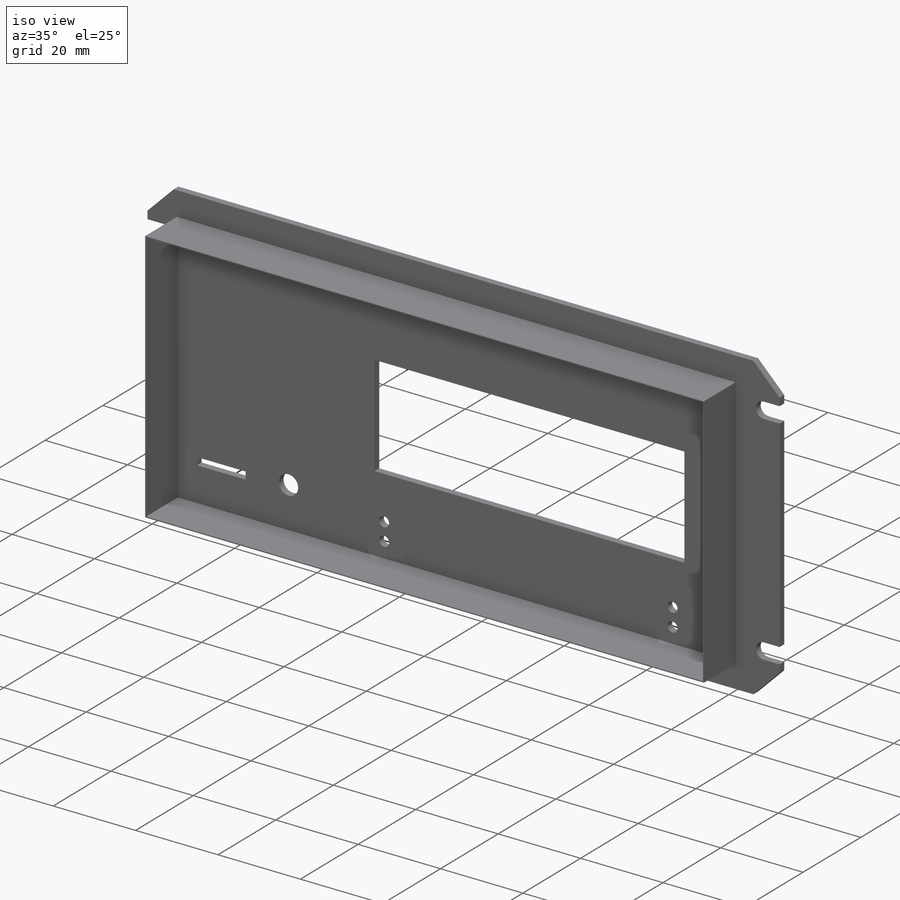
[diagram: iso view]
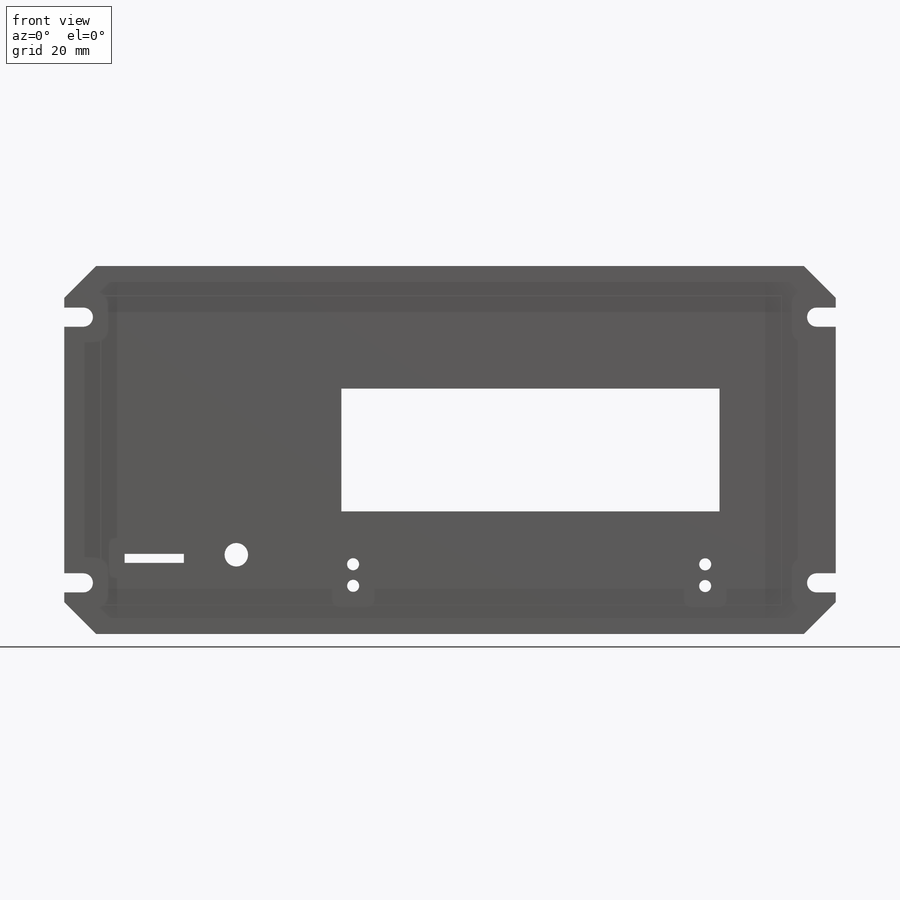
[diagram: front view]
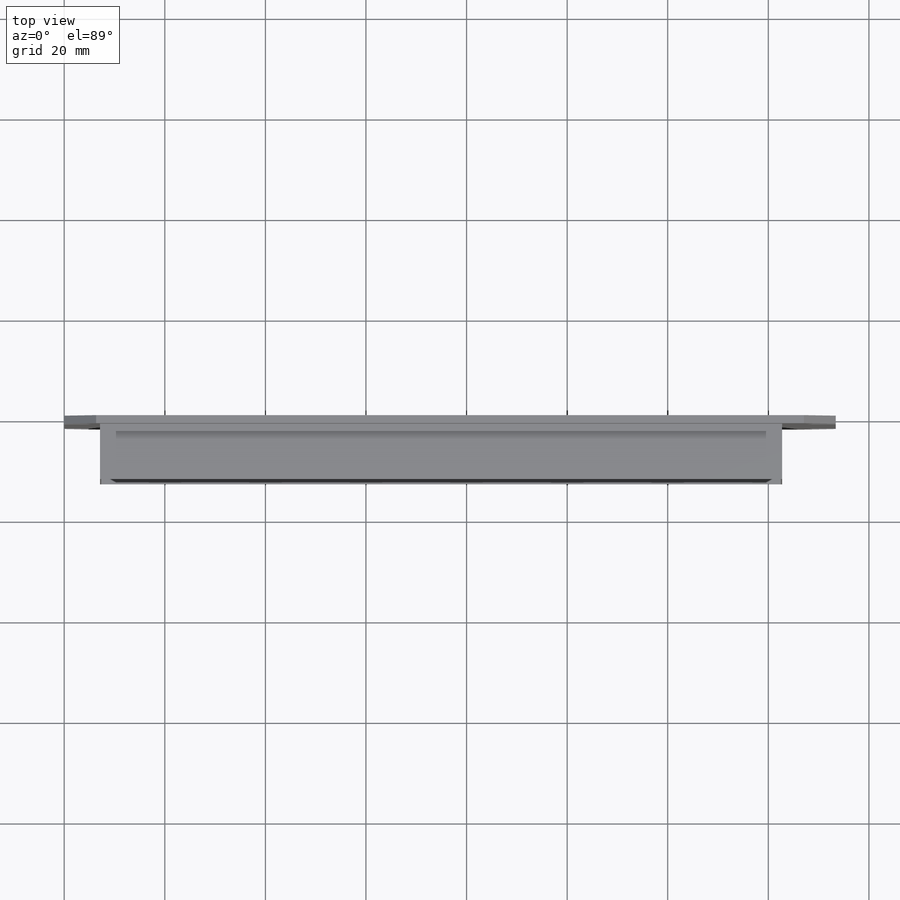
[diagram: top view]
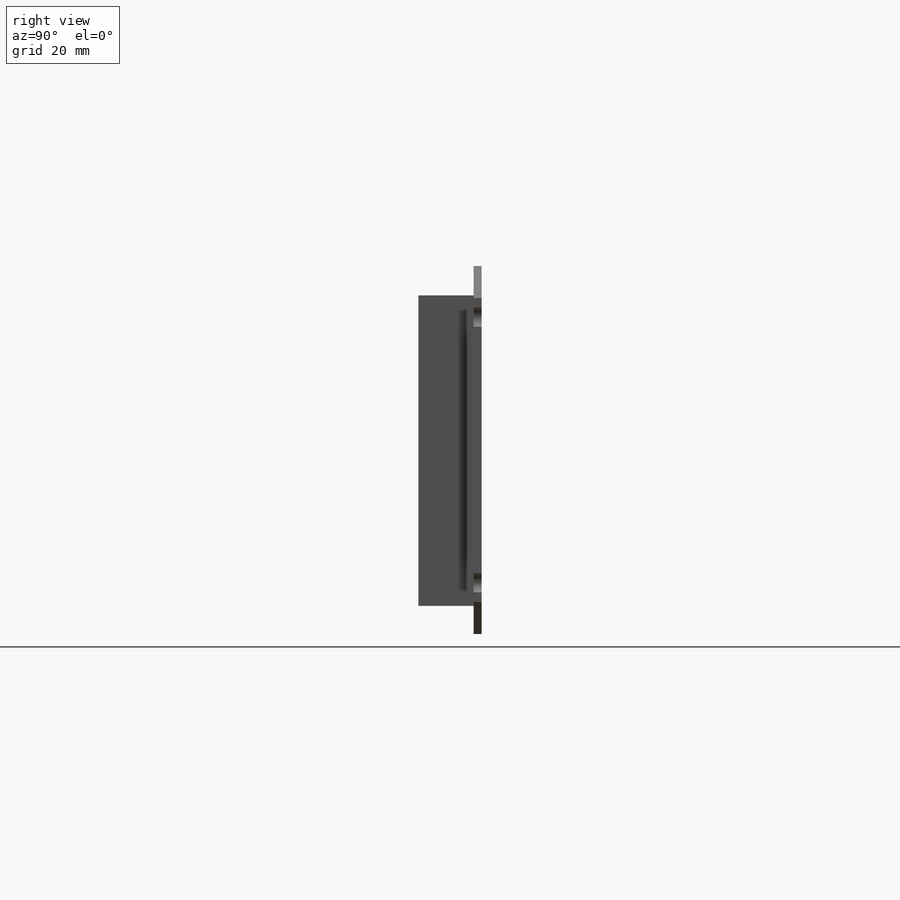
[diagram: right view]
SOLIDWORKS PART (.sldprt)
format: sldprt  version: not decoded by parser v0  size: 2,338,304 bytes
history: native  units: mm
features: sketch x16, cut_extrude x7, hole x3, extrude x2, material x1, plane x1 (+13 scaffold rows collapsed)
feature tree (43):
  scaffold x13  (default folders/planes/origin — collapsed)
  material  "Material <not specified>"
  plane  "Plane1"  Offset=1.6002mm
  sketch  "Sketch1"  dims[c1.D1=153.416mm c1.D2=73.152mm c1.D3=~8.980256mm c1.D4=~8.980256mm c1.D5=~8.980256mm c1.D6=~8.980256mm c1.D7=~8.980256mm c2.D7=135.0deg c2.D8=~8.980256mm c3.D8=135.0deg c4.D8=~8.980256mm c5.D8=135.0deg c5.D9=140.716mm c6.D9=135.0deg c6.D10=6.35mm c7.D10=135.0deg c7.D9=6.35mm c8.D9=135.0deg c8.D11=2.54mm c8.D12=60.452mm]
  extrude  "Boss-Extrude1"  Depth=1.6002mm
  sketch  "Sketch2"
  cut_extrude  "Cut-Extrude1"  Depth=1.6002mm
  sketch  "Sketch3"
  cut_extrude  "Cut-Extrude2"  Depth=1.6002mm
  sketch  "Sketch4"
  cut_extrude  "Cut-Extrude3"  Depth=1.6002mm
  sketch  "Sketch5"
  cut_extrude  "Cut-Extrude4"  Depth=1.6002mm
  sketch  "Sketch6"
  extrude  "Boss-Extrude2"  Depth=11mm
  sketch  "Sketch7"
  cut_extrude  "Cut-Extrude5"  Depth=11mm
  sketch  "Sketch8"
  cut_extrude  "Cut-Extrude6"  Depth=1.6002mm
  sketch  "Sketch9"
  cut_extrude  "Cut-Extrude7"  Depth=1.6002mm
  hole  "M2 Clearance Hole1"  Diameter=2.39776mm Depth=1.6002mm
  sketch  "Sketch11"
  sketch  "Sketch10"  dims[hole-wizard template sketch: 59 standard entries collapsed; hole parameters kept: c18.Thru Hole Dia.=~2.39776mm c18.Thru Hole Depth=1.6002mm]
  hole  "M4 Clearance Hole1"  Diameter=4.445mm Depth=1.6002mm
  sketch  "Sketch13"
  sketch  "Sketch12"  dims[hole-wizard template sketch: 59 standard entries collapsed; hole parameters kept: c18.Thru Hole Dia.=4.445mm c18.Thru Hole Depth=1.6002mm]
  hole  "M4 Clearance Hole2"  Diameter=4.685892mm Depth=1.6002mm
  sketch  "Sketch15"
  sketch  "Sketch14"  dims[hole-wizard template sketch: 59 standard entries collapsed; hole parameters kept: c18.Thru Hole Dia.=~4.685892mm c18.Thru Hole Depth=1.6002mm]
  sketch  "Sketch18"
decode coverage: 16 of 28 modeling features carry decoded parameters
note: ~ marks probable driven/reference dimensions
note: suppression state not decoded; provenance and decode notes live in map.json
